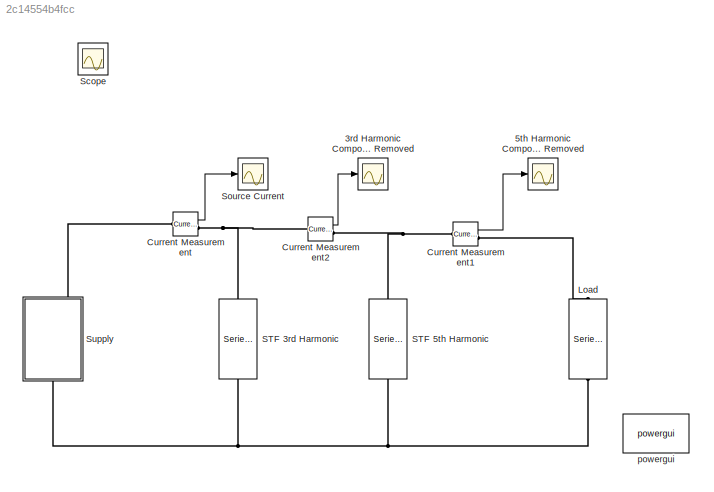
MODEL slx_2c14554b4fcc
KIND model
CONFIG AbsTol = auto
CONFIG FixedStep = auto
CONFIG MaxStep = auto
CONFIG MinStep = auto
CONFIG RelTol = 1e-3
CONFIG SampleTimeConstraint = Unconstrained
CONFIG Solver = ode45
CONFIG SolverMode = Auto
CONFIG SolverName = ode45
CONFIG StartTime = 0.0
CONFIG StopTime = 0.1
BLOCK [Scope] 3rd Harmonic Component Removed
  DataFormat = StructureWithTime
  Floating = off
  NumInputPorts = 1
  Ports = [1]
  SaveName = Filtered_Current1
  SaveToWorkspace = on
BLOCK [Scope] 5th Harmonic Component Removed
  DataFormat = StructureWithTime
  Floating = off
  NumInputPorts = 1
  Ports = [1]
  SaveName = Filtered_Current2
  SaveToWorkspace = on
BLOCK [Reference] Current Measurement  REF=powerlib/Measurements/Current Measurement
  OutputType = Complex
  PSBequivalent = 0
  PhasorSimulation = off
  Ports = [0, 1, 0, 0, 0, 1, 1]
  SourceBlock = powerlib/Measurements/Current Measurement
  SourceType = Current Measurement
  UserDataPersistent = on
BLOCK [Reference] Current Measurement1  REF=powerlib/Measurements/Current Measurement
  OutputType = Complex
  PSBequivalent = 0
  PhasorSimulation = off
  Ports = [0, 1, 0, 0, 0, 1, 1]
  SourceBlock = powerlib/Measurements/Current Measurement
  SourceType = Current Measurement
  UserDataPersistent = on
BLOCK [Reference] Current Measurement2  REF=powerlib/Measurements/Current Measurement
  OutputType = Complex
  PSBequivalent = 0
  PhasorSimulation = off
  Ports = [0, 1, 0, 0, 0, 1, 1]
  SourceBlock = powerlib/Measurements/Current Measurement
  SourceType = Current Measurement
  UserDataPersistent = on
BLOCK [Reference] Load  REF=powerlib/Elements/Series RLC Branch
  BranchType = R
  Capacitance = 1e-6
  Inductance = 1e-3
  InitialCurrent = 0
  InitialVoltage = 0
  LConnTagsString = __new0
  Measurements = Branch voltage and current
  Ports = [0, 0, 0, 0, 0, 1, 1]
  RConnTagsString = __new0
  Resistance = 1
  SetiL0 = off
  Setx0 = off
  SourceBlock = powerlib/Elements/Series RLC Branch
  SourceType = Series RLC Branch
BLOCK [Reference] STF 3rd Harmonic  REF=powerlib/Elements/Series RLC Branch
  BranchType = RLC
  Capacitance = 8e-3
  Inductance = 0.000147199
  InitialCurrent = 0
  InitialVoltage = 0
  LConnTagsString = __new0
  Measurements = None
  Ports = [0, 0, 0, 0, 0, 1, 1]
  RConnTagsString = __new0
  Resistance = 0.0027741142474339464
  SetiL0 = off
  Setx0 = off
  SourceBlock = powerlib/Elements/Series RLC Branch
  SourceType = Series RLC Branch
BLOCK [Reference] STF 5th Harmonic  REF=powerlib/Elements/Series RLC Branch
  BranchType = RLC
  Capacitance = 0.007650969
  Inductance = 0.000052991
  InitialCurrent = 0
  InitialVoltage = 0
  LConnTagsString = __new0
  Measurements = None
  Ports = [0, 0, 0, 0, 0, 1, 1]
  RConnTagsString = __new0
  Resistance = 0.0016644685484603675
  SetiL0 = off
  Setx0 = off
  SourceBlock = powerlib/Elements/Series RLC Branch
  SourceType = Series RLC Branch
BLOCK [Scope] Scope
  DataFormat = StructureWithTime
  Floating = off
  IOType = viewer
  NumInputPorts = 1
  Ports = []
  SampleTime = 0
BLOCK [Scope] Source Current
  DataFormat = StructureWithTime
  Floating = off
  NumInputPorts = 1
  Ports = [1]
  SaveName = Source_Current
  SaveToWorkspace = on
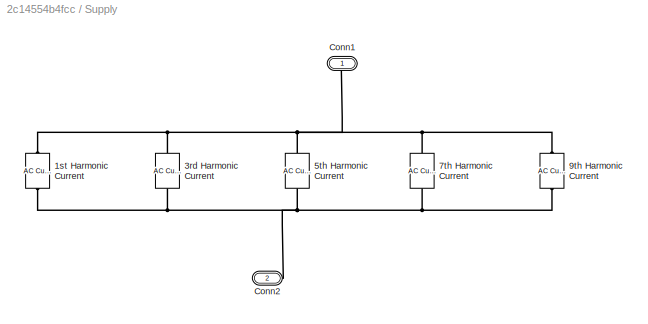
BLOCK [SubSystem] Supply
  Ports = [0, 0, 0, 0, 0, 1, 1]
  RequestExecContextInheritance = off
BLOCK [Reference] Supply/1st Harmonic Current  REF=powerlib/Electrical
Sources/AC Current Source
  Amplitude = 10
  Frequency = 50
  Measurements = Current
  Phase = 0
  Ports = [0, 0, 0, 0, 0, 1, 1]
  SampleTime = 0
  SourceBlock = powerlib/Electrical\nSources/AC Current Source
  SourceType = AC Current Source
BLOCK [Reference] Supply/3rd Harmonic Current  REF=powerlib/Electrical
Sources/AC Current Source
  Amplitude = 8.4
  Frequency = 150
  Measurements = Current
  Phase = 0
  Ports = [0, 0, 0, 0, 0, 1, 1]
  SampleTime = 0
  SourceBlock = powerlib/Electrical\nSources/AC Current Source
  SourceType = AC Current Source
BLOCK [Reference] Supply/5th Harmonic Current  REF=powerlib/Electrical
Sources/AC Current Source
  Amplitude = 6.3
  Frequency = 250
  Measurements = Current
  Phase = 0
  Ports = [0, 0, 0, 0, 0, 1, 1]
  SampleTime = 0
  SourceBlock = powerlib/Electrical\nSources/AC Current Source
  SourceType = AC Current Source
BLOCK [Reference] Supply/7th Harmonic Current  REF=powerlib/Electrical
Sources/AC Current Source
  Amplitude = 3.8
  Frequency = 350
  Measurements = Current
  Phase = 0
  Ports = [0, 0, 0, 0, 0, 1, 1]
  SampleTime = 0
  SourceBlock = powerlib/Electrical\nSources/AC Current Source
  SourceType = AC Current Source
BLOCK [Reference] Supply/9th Harmonic Current  REF=powerlib/Electrical
Sources/AC Current Source
  Amplitude = 1.6
  Frequency = 450
  Measurements = Current
  Phase = 0
  Ports = [0, 0, 0, 0, 0, 1, 1]
  SampleTime = 0
  SourceBlock = powerlib/Electrical\nSources/AC Current Source
  SourceType = AC Current Source
BLOCK [PMIOPort] Supply/Conn1
  Port = 1
  Side = Right
BLOCK [PMIOPort] Supply/Conn2
  Port = 2
  Side = Left
BLOCK [Reference] powergui  REF=powerlib/powergui
  DisableRonSwitches = off
  DisableSnubberDevices = off
  DisableVfSwitches = off
  DisplayEquations = off
  DisplayStyle = 1
  EnableUseOfTLC = off
  ErrMax = 1e-4
  Frange = [0:2:500]
  FreqAxis = on
  FunctionMessages = off
  HookPort = off
  Interpol = off
  Iterations = 50
  MaxFrequency = 500
  Pbase = 100e6
  Ports = []
  Priority = 1
  ResistiveCurrentMeasurement = off
  RestoreLinks = warning
  RmsSteady = 1
  SPID = off
  SampleTime = 50e-6
  ShowGrid = off
  SolverType = Tustin/Backward Euler (TBE)
  SourceBlock = powerlib/powergui
  SourceType = PSB option menu block
  StartTime = 0.0
  SwTol = 0
  Ts = 100
  UnitsV = kV
  UnitsW = MW
  UserDataPersistent = on
  Xlog = on
  Ylog = off
  ZoomFFT = off
  buscounter = 0
  cycles = 1
  display = off
  echomessages = off
  frequency = 60
  frequencyindice = 50
  frequencyindicesteady = 1
  fundamental = 50
  methode = off
  save = off
  structure = Filtered_Current2
  variable = ZData
  x0status = blocks
LINE Current Measurement1:1 -> 5th Harmonic Component Removed:1
LINE Current Measurement2:1 -> 3rd Harmonic Component Removed:1
LINE Current Measurement:1 -> Source Current:1
PNET net1: Current Measurement1:LConn1 -- Current Measurement2:RConn1 -- STF 5th Harmonic:LConn1
PLINE Current Measurement1:RConn1 -- Load:LConn1
PNET net2: Current Measurement2:LConn1 -- Current Measurement:RConn1 -- STF 3rd Harmonic:LConn1
PLINE Current Measurement:LConn1 -- Supply:RConn1
PNET net3: Load:RConn1 -- STF 3rd Harmonic:RConn1 -- STF 5th Harmonic:RConn1 -- Supply:LConn1
PNET net4: Supply/1st Harmonic Current:LConn1 -- Supply/3rd Harmonic Current:LConn1 -- Supply/5th Harmonic Current:LConn1 -- Supply/7th Harmonic Current:LConn1 -- Supply/9th Harmonic Current:LConn1 -- Supply/Conn2:RConn1
PNET net5: Supply/1st Harmonic Current:RConn1 -- Supply/3rd Harmonic Current:RConn1 -- Supply/5th Harmonic Current:RConn1 -- Supply/7th Harmonic Current:RConn1 -- Supply/9th Harmonic Current:RConn1 -- Supply/Conn1:RConn1
note: PNET lines group multi-terminal physical nets as a canonical sorted terminal list (undirected conserving connections); 2-terminal nets keep the pairwise PLINE form
